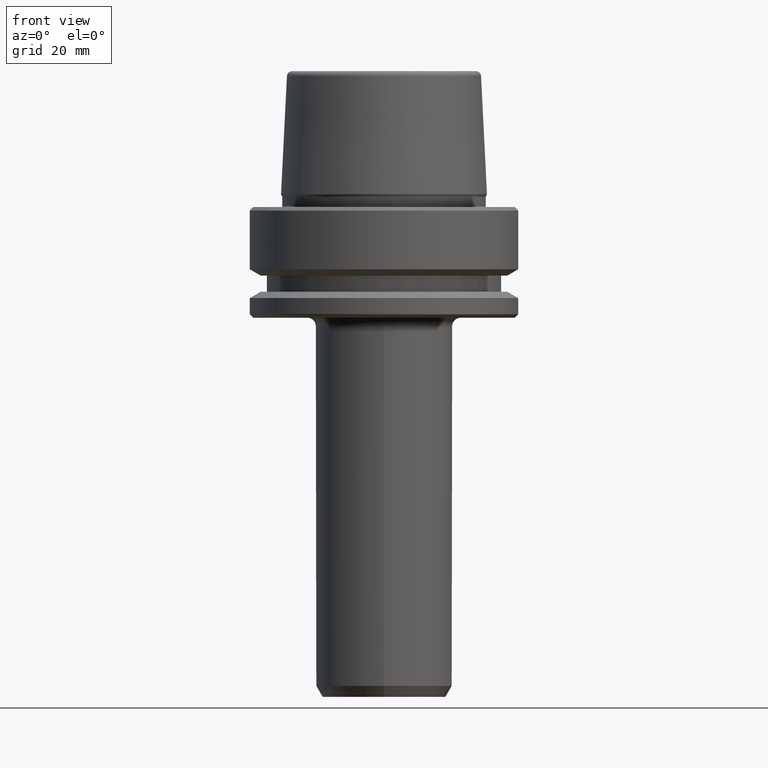
[diagram: clean part render]
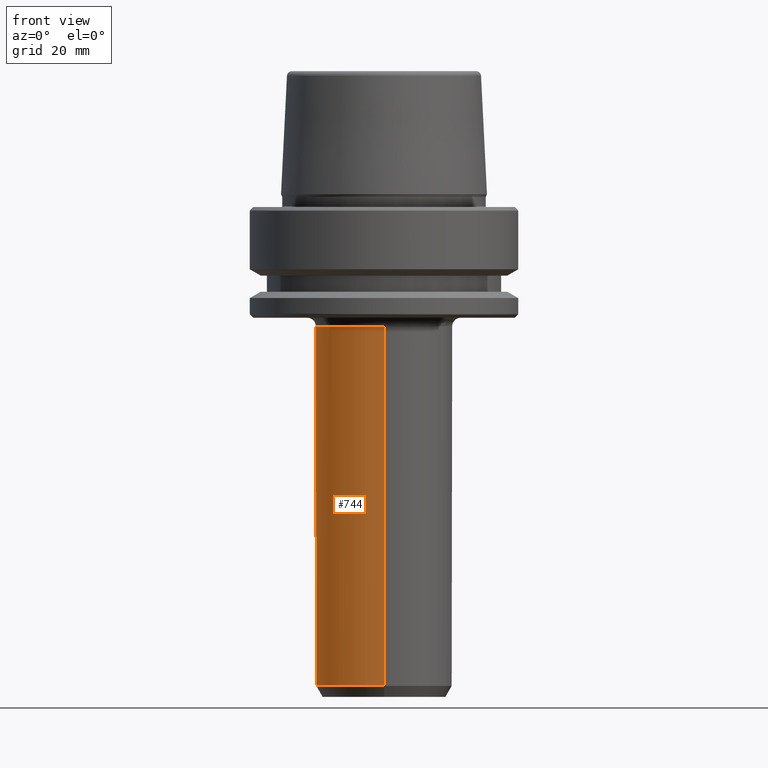
[diagram: same view with one face highlighted and labeled with its STEP entity id]
A machine part, front view. The second image highlights one B-rep face of the part: STEP entity #744.
In plain terms, the highlighted cylindrical surface (partial cylindrical patch) has radius 16 mm, axis along (-0, 0, -1).
Its self-contained STEP definition (entity closure, byte-faithful):
#6 = ORIENTED_EDGE ( 'NONE', *, *, #967, .F. ) ;
#26 = CARTESIAN_POINT ( 'NONE',  ( 0.0000000000000000000, 1.783345607998985400E-015, -112.4019237886466600 ) ) ;
#28 = DIRECTION ( 'NONE',  ( -0.0000000000000000000, 2.064011459237114500E-017, -1.000000000000000000 ) ) ;
#55 = DIRECTION ( 'NONE',  ( 0.0000000000000000000, 0.0000000000000000000, -1.000000000000000000 ) ) ;
#145 = CYLINDRICAL_SURFACE ( 'NONE', #904, 16.00000000000000000 ) ;
#163 = VERTEX_POINT ( 'NONE', #794 ) ;
#165 = ORIENTED_EDGE ( 'NONE', *, *, #467, .T. ) ;
#187 = LINE ( 'NONE', #953, #530 ) ;
#320 = AXIS2_PLACEMENT_3D ( 'NONE', #26, #621, #1217 ) ;
#329 = DIRECTION ( 'NONE',  ( 1.000000000000000000, 0.0000000000000000000, 0.0000000000000000000 ) ) ;
#342 = VERTEX_POINT ( 'NONE', #1105 ) ;
#366 = EDGE_CURVE ( 'NONE', #1127, #566, #1143, .T. ) ;
#396 = VECTOR ( 'NONE', #579, 1000.000000000000000 ) ;
#402 = CARTESIAN_POINT ( 'NONE',  ( 0.0000000000000000000, 4.128022918474246300E-017, -28.00000000000001100 ) ) ;
#412 = DIRECTION ( 'NONE',  ( 1.000000000000000000, 0.0000000000000000000, 0.0000000000000000000 ) ) ;
#465 = EDGE_CURVE ( 'NONE', #1127, #932, #187, .T. ) ;
#467 = EDGE_CURVE ( 'NONE', #342, #163, #869, .T. ) ;
#530 = VECTOR ( 'NONE', #28, 1000.000000000000000 ) ;
#540 = CARTESIAN_POINT ( 'NONE',  ( 0.0000000000000000000, -15.99999999999999300, -112.4019237886466600 ) ) ;
#553 = CARTESIAN_POINT ( 'NONE',  ( 0.0000000000000000000, 4.128022918474246300E-017, -28.00000000000001100 ) ) ;
#560 = CARTESIAN_POINT ( 'NONE',  ( 0.0000000000000000000, 16.00000000000000400, -115.0000000000000000 ) ) ;
#566 = VERTEX_POINT ( 'NONE', #1205 ) ;
#579 = DIRECTION ( 'NONE',  ( -0.0000000000000000000, 2.064011459237114500E-017, -1.000000000000000000 ) ) ;
#596 = AXIS2_PLACEMENT_3D ( 'NONE', #402, #627, #329 ) ;
#602 = CARTESIAN_POINT ( 'NONE',  ( 1.959434878635765100E-015, -16.00000000000000000, -28.00000000000001100 ) ) ;
#605 = FACE_OUTER_BOUND ( 'NONE', #656, .T. ) ;
#621 = DIRECTION ( 'NONE',  ( -0.0000000000000000000, 2.064011459237114500E-017, -1.000000000000000000 ) ) ;
#627 = DIRECTION ( 'NONE',  ( 0.0000000000000000000, 0.0000000000000000000, -1.000000000000000000 ) ) ;
#629 = AXIS2_PLACEMENT_3D ( 'NONE', #553, #55, #412 ) ;
#656 = EDGE_LOOP ( 'NONE', ( #838, #772, #1231, #165, #6 ) ) ;
#660 = EDGE_CURVE ( 'NONE', #566, #342, #868, .T. ) ;
#667 = CARTESIAN_POINT ( 'NONE',  ( 0.0000000000000000000, 1.836970198721032000E-015, -115.0000000000000000 ) ) ;
#744 = ADVANCED_FACE ( 'NONE', ( #605 ), #145, .T. ) ;
#772 = ORIENTED_EDGE ( 'NONE', *, *, #366, .T. ) ;
#773 = DIRECTION ( 'NONE',  ( -0.0000000000000000000, 2.064011459237114500E-017, -1.000000000000000000 ) ) ;
#794 = CARTESIAN_POINT ( 'NONE',  ( 1.959434878635764700E-015, 16.00000000000000000, -112.4019237886466600 ) ) ;
#838 = ORIENTED_EDGE ( 'NONE', *, *, #465, .F. ) ;
#868 = CIRCLE ( 'NONE', #596, 16.00000000000000000 ) ;
#869 = LINE ( 'NONE', #560, #396 ) ;
#885 = DIRECTION ( 'NONE',  ( 0.0000000000000000000, 1.000000000000000000, 0.0000000000000000000 ) ) ;
#904 = AXIS2_PLACEMENT_3D ( 'NONE', #667, #773, #885 ) ;
#932 = VERTEX_POINT ( 'NONE', #540 ) ;
#953 = CARTESIAN_POINT ( 'NONE',  ( 1.959434878635765100E-015, -15.99999999999999600, -115.0000000000000000 ) ) ;
#967 = EDGE_CURVE ( 'NONE', #932, #163, #1179, .T. ) ;
#1105 = CARTESIAN_POINT ( 'NONE',  ( 0.0000000000000000000, 16.00000000000000000, -28.00000000000001100 ) ) ;
#1127 = VERTEX_POINT ( 'NONE', #602 ) ;
#1143 = CIRCLE ( 'NONE', #629, 16.00000000000000000 ) ;
#1179 = CIRCLE ( 'NONE', #320, 15.99999999999999600 ) ;
#1205 = CARTESIAN_POINT ( 'NONE',  ( -16.00000000000000000, 2.123179787735243000E-015, -28.00000000000001100 ) ) ;
#1217 = DIRECTION ( 'NONE',  ( 0.0000000000000000000, 1.000000000000000000, 0.0000000000000000000 ) ) ;
#1231 = ORIENTED_EDGE ( 'NONE', *, *, #660, .T. ) ;